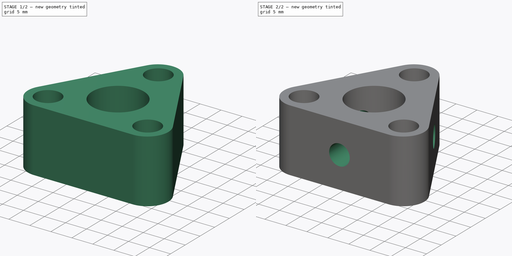
[diagram: build sequence overview — one tinted view per stage of 2, left to right]
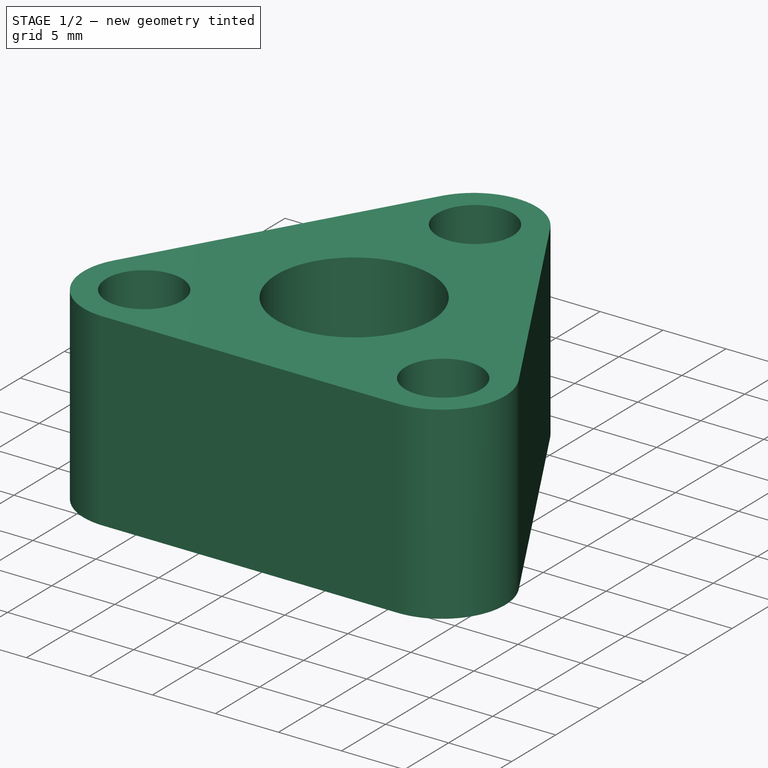
[diagram: stage 1 of 2 — iso view after this stage's code; geometry added in this stage tinted green]
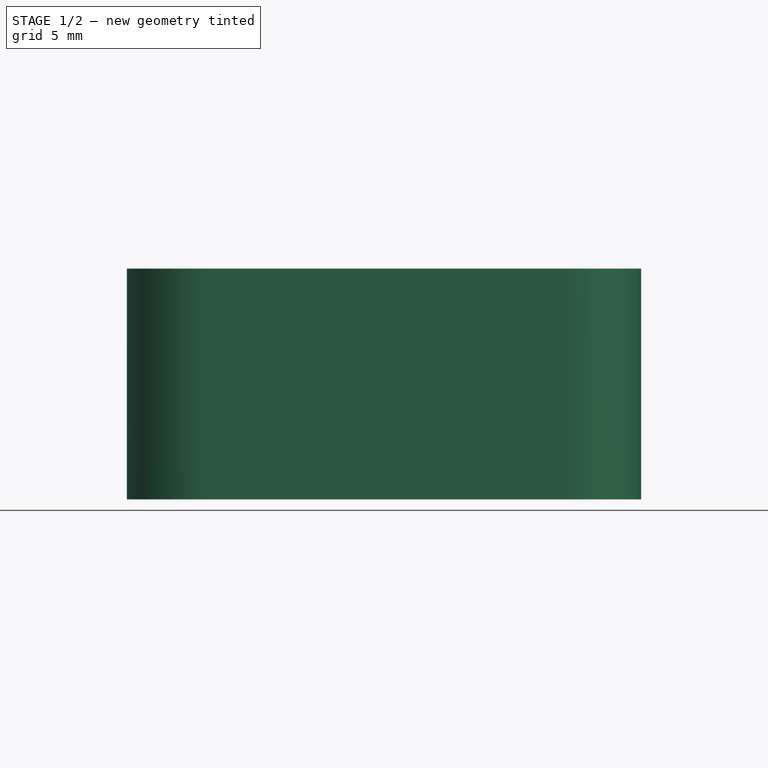
[diagram: stage 1 of 2 — front view after this stage's code; geometry added in this stage tinted green]
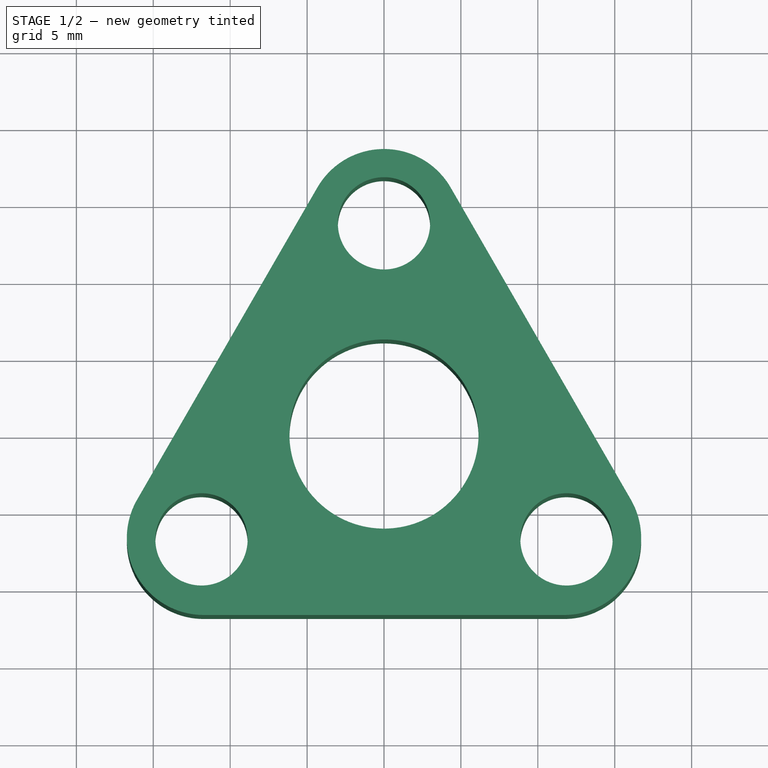
[diagram: stage 1 of 2 — top view after this stage's code; geometry added in this stage tinted green]
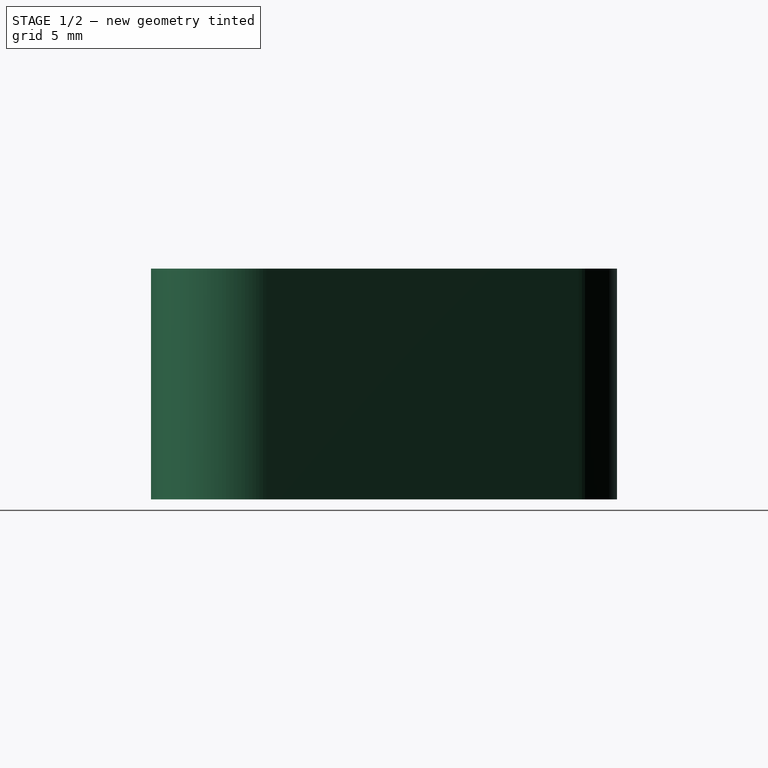
[diagram: stage 1 of 2 — right view after this stage's code; geometry added in this stage tinted green]
FCSTD DOCUMENT  (FreeCAD 0.21R33771 (Git))
Label: 00axisthread
License: All rights reserved
LicenseURL: https://en.wikipedia.org/wiki/All_rights_reserved
objects: Sketcher::SketchObject×2, PartDesign::Pad×1, PartDesign::Fillet×1, PartDesign::Plane×1, PartDesign::Pocket×1, PartDesign::PolarPattern×1, PartDesign::Body×1
note: 11 computed .brp shape members not serialized (recipe doc carries the construction recipe); baked Part::Feature solids carry a one-line shape summary decoded from their .brp

FEATURE [Sketcher::SketchObject] Sketch
  FullyConstrained = true
  MapMode = 5
  Support = -> [XY_Plane]
  sketch-geometry (12):
    g0: LineSegment StartX=0 StartY=23.5333 StartZ=0 EndX=-20.3805 EndY=-11.7667 EndZ=0
    g1: LineSegment StartX=-20.3805 StartY=-11.7667 StartZ=0 EndX=20.3805 EndY=-11.7667 EndZ=0
    g2: LineSegment StartX=20.3805 StartY=-11.7667 StartZ=0 EndX=0 EndY=23.5333 EndZ=0
    g3: Circle CenterX=0 CenterY=0 CenterZ=0 NormalX=0 NormalY=0 NormalZ=1 AngleXU=0 Radius=23.5333
    g4: Circle CenterX=0 CenterY=0 CenterZ=0 NormalX=0 NormalY=0 NormalZ=1 AngleXU=0 Radius=13.7
    g5: LineSegment StartX=20.3805 StartY=-11.7667 StartZ=0 EndX=-10.1902 EndY=5.88333 EndZ=0
    g6: LineSegment StartX=-20.3805 StartY=-11.7667 StartZ=0 EndX=10.1902 EndY=5.88333 EndZ=0
    g7: LineSegment StartX=0 StartY=23.5333 StartZ=0 EndX=0 EndY=-11.7667 EndZ=0
    g8: Circle CenterX=0 CenterY=13.7 CenterZ=0 NormalX=0 NormalY=0 NormalZ=1 AngleXU=0 Radius=3
    g9: Circle CenterX=11.8645 CenterY=-6.85 CenterZ=0 NormalX=0 NormalY=0 NormalZ=1 AngleXU=0 Radius=3
    g10: Circle CenterX=-11.8645 CenterY=-6.85 CenterZ=0 NormalX=0 NormalY=0 NormalZ=1 AngleXU=0 Radius=3
    g11: Circle CenterX=0 CenterY=0 CenterZ=0 NormalX=0 NormalY=0 NormalZ=1 AngleXU=0 Radius=6.15
  constraints (33):
    c: Coincident(g0,g1)
    c: Coincident(g1,g2)
    c: Coincident(g2,g0)
    c: Equal(g0,g1)
    c: Equal(g0,g2)
    c: PointOnObject(g0,g3)
    c: PointOnObject(g1,g3)
    c: PointOnObject(g2,g3)
    c: Coincident(g3,g-1)
    c: PointOnObject(g2,g-2)
    c: Coincident(g4,g3)
    c: Radius(g4) = 13.7
    c: DistanceY(g1,g0) = 35.3
    c: Coincident(g5,g1)
    c: PointOnObject(g5,g0)
    c: Coincident(g6,g0)
    c: PointOnObject(g6,g2)
    c: Coincident(g7,g0)
    c: PointOnObject(g7,g1)
    c: Vertical(g7)
    c: PointOnObject(g8,g4)
    c: PointOnObject(g9,g4)
    c: PointOnObject(g10,g4)
    c: PointOnObject(g10,g6)
    c: PointOnObject(g9,g5)
    c: PointOnObject(g8,g7)
    c: PointOnObject(g3,g5)
    c: PointOnObject(g3,g6)
    c: Coincident(g11,g3)
    c: Diameter(g11) = 12.3
    c: Equal(g10,g9)
    c: Equal(g10,g8)
    c: Diameter(g10) = 6
FEATURE [PartDesign::Pad] Pad
  Direction = (0,0,1)
  Length = 15
  Length2 = 10
  Profile = -> Sketch
  ReferenceAxis = -> Sketch [N_Axis]
  Type = 0
FEATURE [PartDesign::Fillet] Fillet
  Base = -> Pad [Edge2,Edge1,Edge5]
  BaseFeature = -> Pad
  Radius = 5
  SupportTransform = false
  UseAllEdges = false
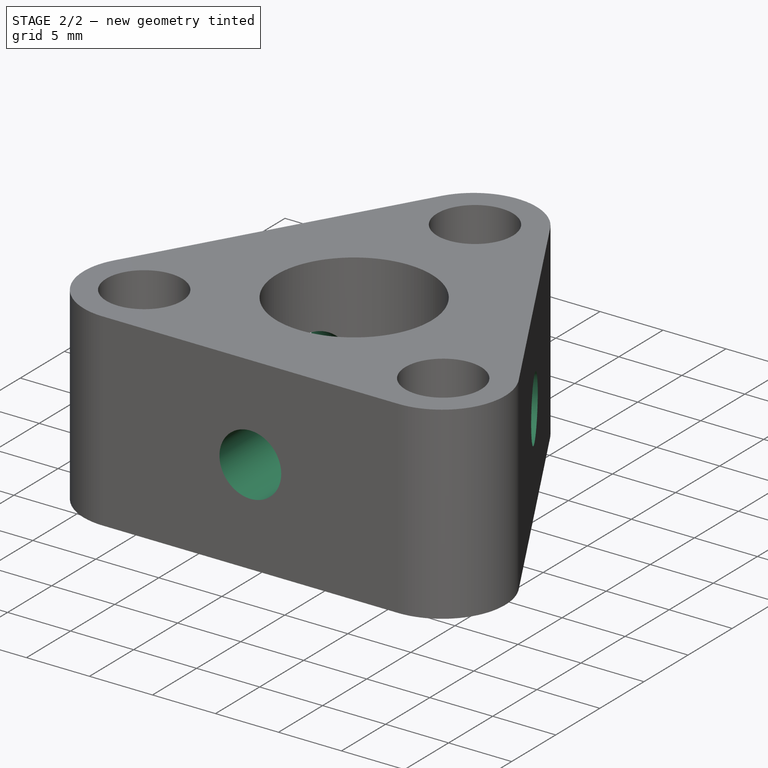
[diagram: stage 2 of 2 — iso view after this stage's code; geometry added in this stage tinted green]
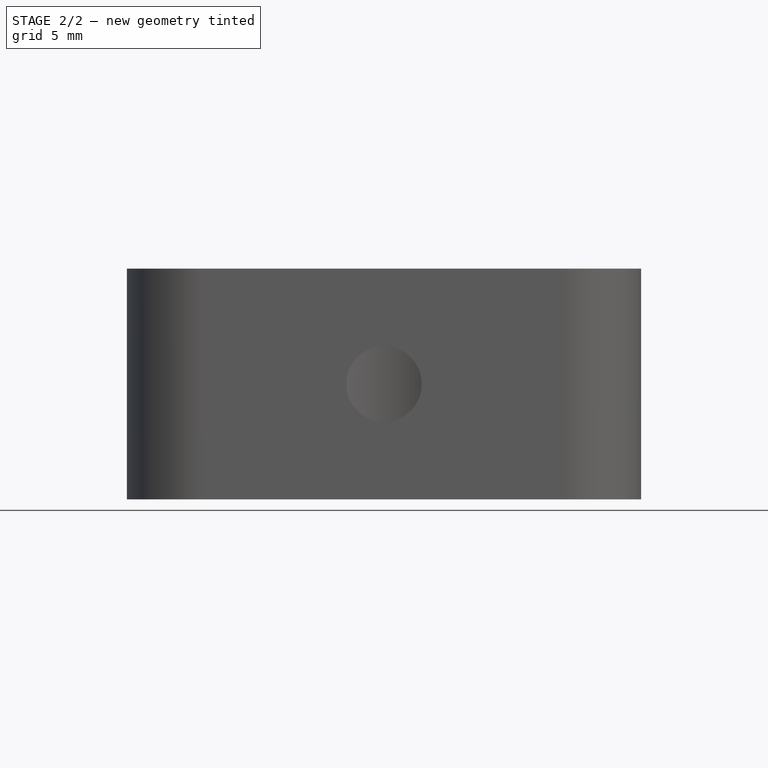
[diagram: stage 2 of 2 — front view after this stage's code; geometry added in this stage tinted green]
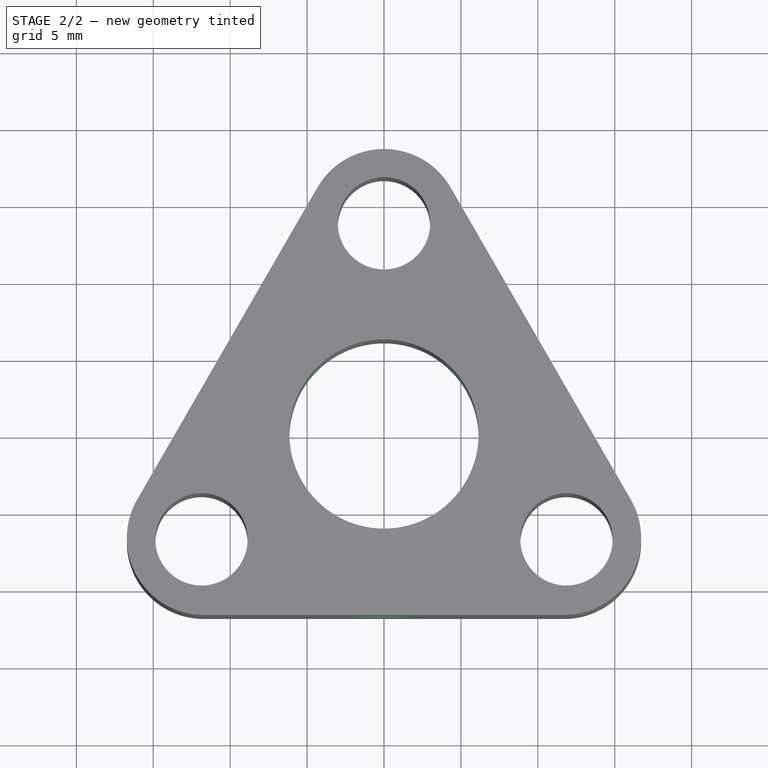
[diagram: stage 2 of 2 — top view after this stage's code; geometry added in this stage tinted green]
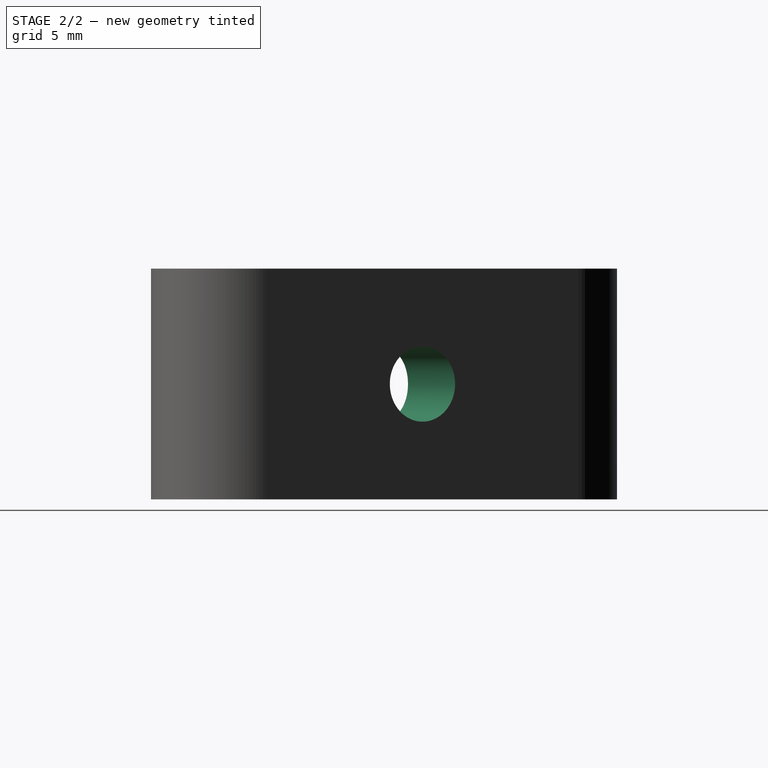
[diagram: stage 2 of 2 — right view after this stage's code; geometry added in this stage tinted green]
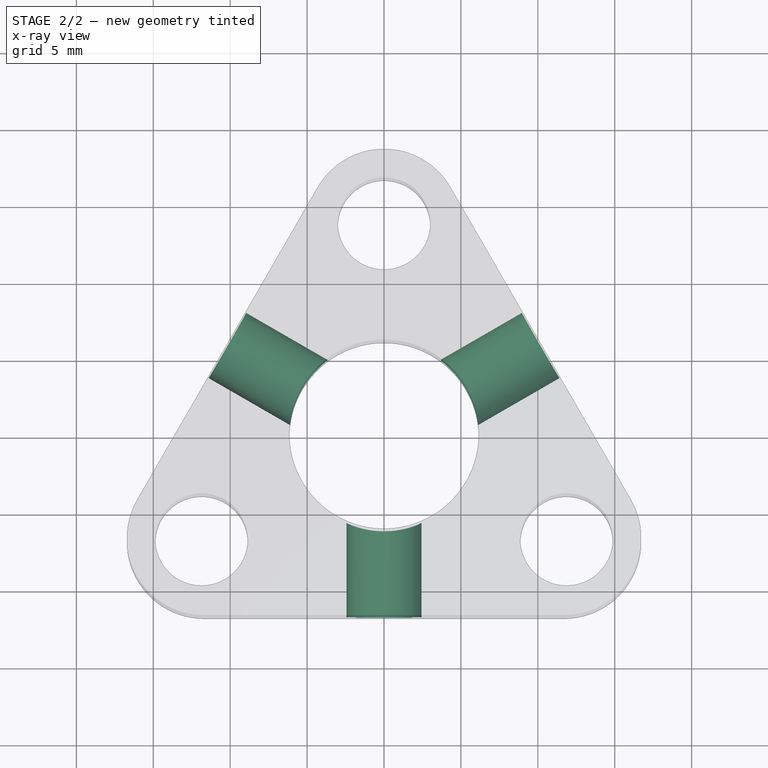
[diagram: stage 2 of 2 — x-ray composite at the top view; earlier geometry ghosted, this stage's added geometry solid]
FEATURE [PartDesign::Plane] DatumPlane
  Length = 79.989
  MapMode = 5
  Placement = pos=(-10.1902,5.88333,0) rot=(-0.377964,0.654654,0.654654;3.86433rad)
  ResizeMode = 0
  Support = -> [Fillet]
  Width = 61.6877
FEATURE [Sketcher::SketchObject] Sketch001
  FullyConstrained = true
  MapMode = 5
  Placement = pos=(-10.1902,5.88333,0) rot=(-0.377964,0.654654,0.654654;3.86433rad)
  Support = -> [DatumPlane]
  sketch-geometry (1):
    g0: Circle CenterX=0 CenterY=7.5 CenterZ=0 NormalX=0 NormalY=0 NormalZ=1 AngleXU=0 Radius=2.45
  constraints (3):
    c: PointOnObject(g0,g-2)
    c: Diameter(g0) = 4.9
    c: DistanceY(g-1,g0) = 7.5
FEATURE [PartDesign::Pocket] Pocket
  BaseFeature = -> Fillet
  Direction = (0.866025,-0.5,-2e-16)
  Length = 11
  Length2 = 5
  Profile = -> Sketch001
  ReferenceAxis = -> Sketch001 [N_Axis]
  Type = 0
FEATURE [PartDesign::PolarPattern] PolarPattern
  Angle = 360
  Axis = -> Z_Axis
  BaseFeature = -> Pocket
  Occurrences = 3
  Originals = -> [Pocket]
FEATURE [PartDesign::Body] Body
  Group = -> [Sketch,Pad,Fillet,DatumPlane,Sketch001,Pocket,PolarPattern]
  Origin = -> Origin
  Tip = -> PolarPattern
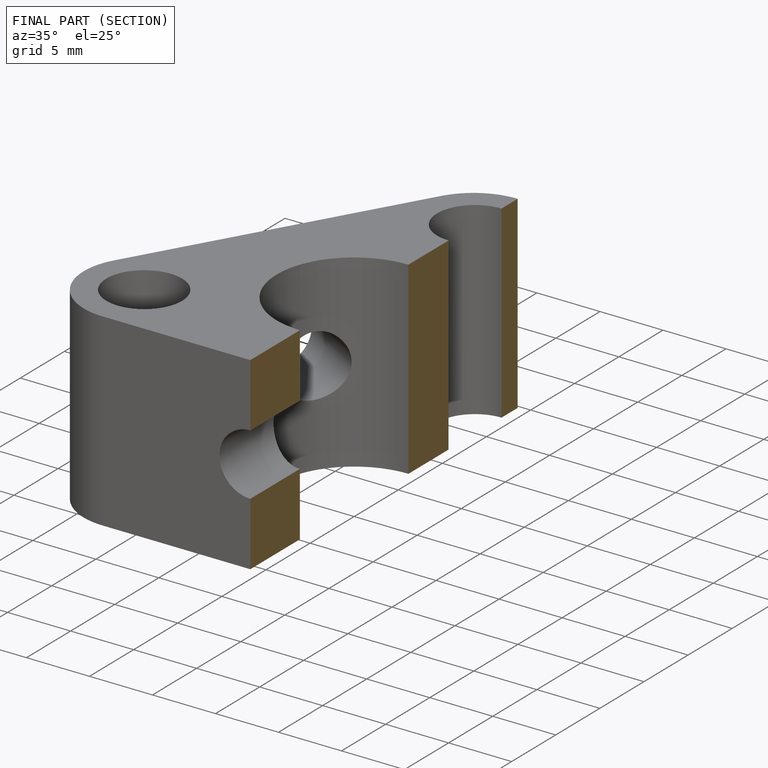
[diagram: finished part — half-section view (interior)]
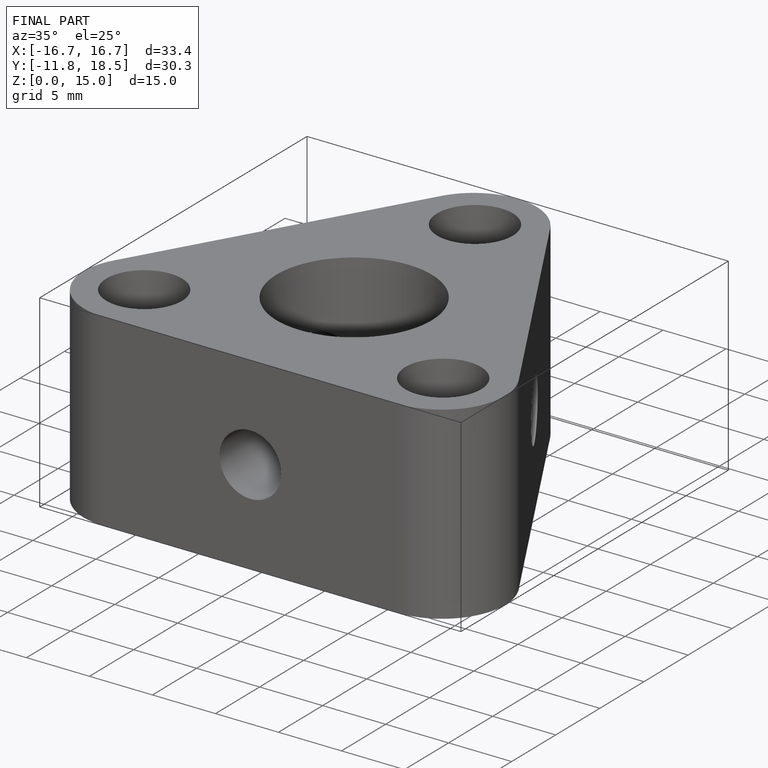
[diagram: finished part — iso view with bounding-box wireframe]
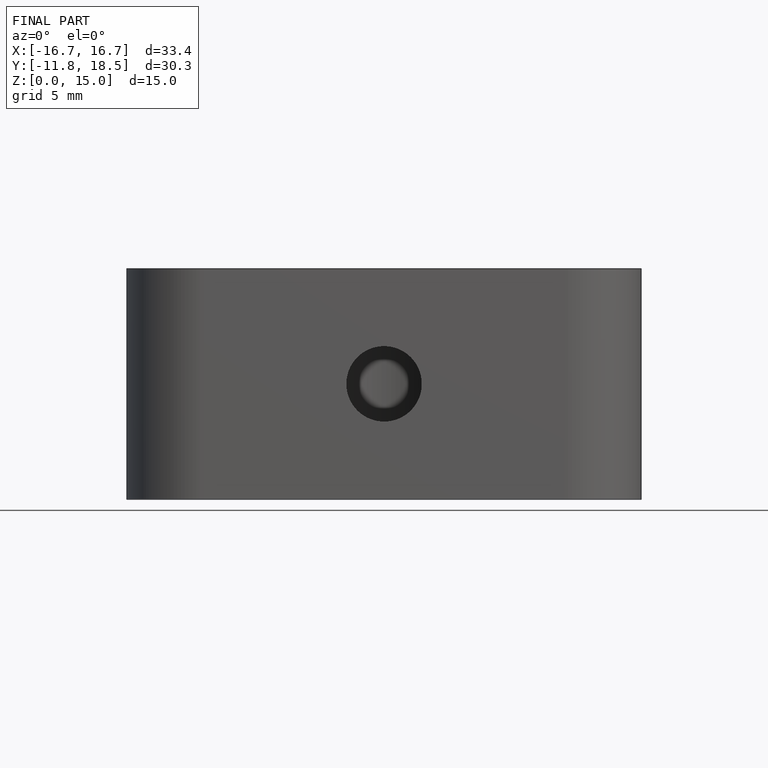
[diagram: finished part — front view with bounding-box wireframe]
